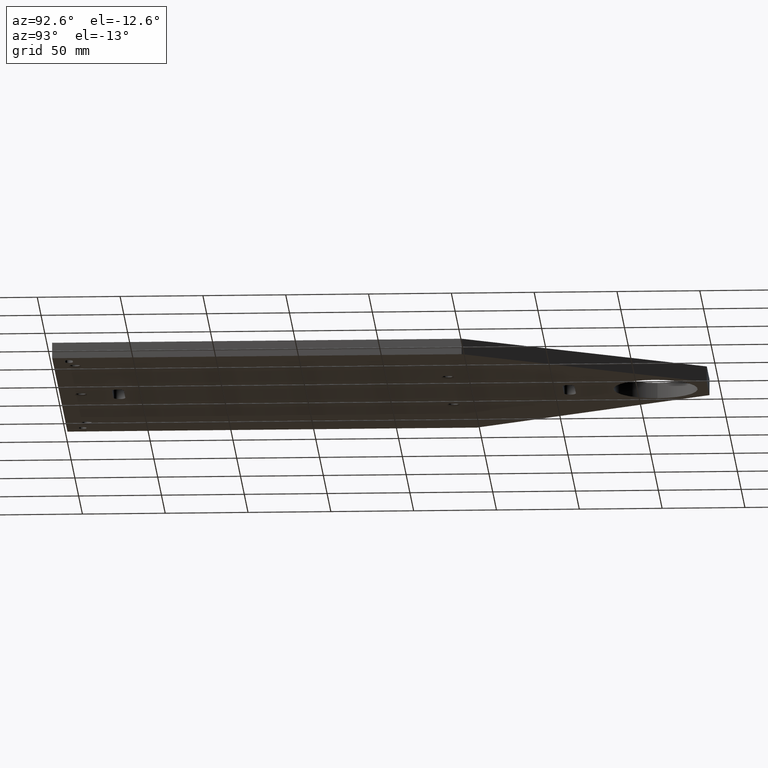
[diagram: clean part render]
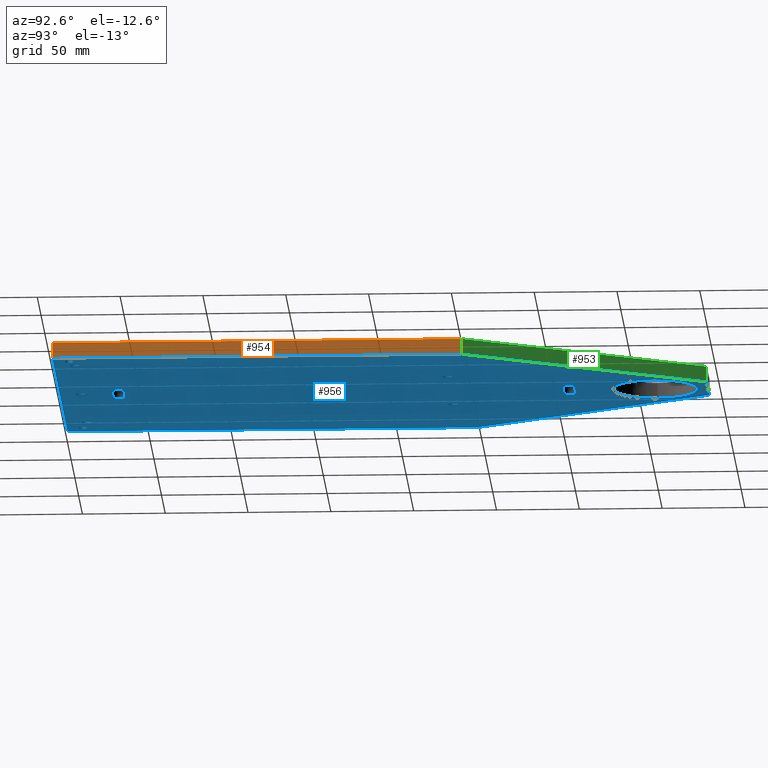
[diagram: same view with three faces highlighted in distinct colors, each labeled with its STEP entity id]
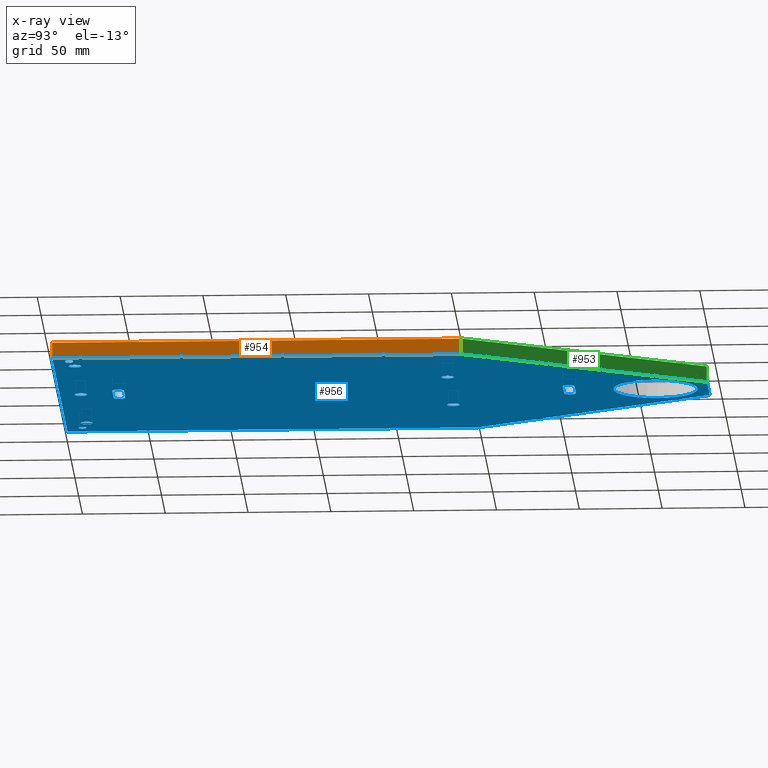
[diagram: x-ray of the same camera — body ghosted, the three highlighted faces saturated]
A machine part, auxiliary view with three faces highlighted in distinct colors.
The next image is the same camera in x-ray (body ghosted, the three faces saturated) — at least one of them is partly hidden behind the body in this view.
Their STEP definitions:

[orange] entity #954 — the highlighted planar face has unit normal (1, 0, -0).
#72 = LINE ( 'NONE', #1204, #75 ) ;
#74 = LINE ( 'NONE', #1224, #81 ) ;
#75 = VECTOR ( 'NONE', #1205, 39.37007874015748100 ) ;
#76 = LINE ( 'NONE', #1208, #79 ) ;
#79 = VECTOR ( 'NONE', #1210, 39.37007874015748100 ) ;
#81 = VECTOR ( 'NONE', #1209, 39.37007874015748100 ) ;
#163 = DIRECTION ( 'NONE',  ( -2.245362950125366000E-016, 1.000000000000000000, -0.0000000000000000000 ) ) ;
#164 = CARTESIAN_POINT ( 'NONE',  ( 4.000000000000005300, 9.733296769724415000, 0.1875000000000000300 ) ) ;
#230 = CARTESIAN_POINT ( 'NONE',  ( 4.000000000000005300, 9.733296769724415000, 0.1875000000000000300 ) ) ;
#273 = CARTESIAN_POINT ( 'NONE',  ( 4.000000000000005300, 9.733296769724415000, -0.1875000000000000300 ) ) ;
#285 = CARTESIAN_POINT ( 'NONE',  ( 4.000000000000008000, 1.092739197465705300E-015, 0.1875000000000000300 ) ) ;
#299 = CARTESIAN_POINT ( 'NONE',  ( 4.000000000000008000, 1.092739197465705300E-015, -0.1875000000000000300 ) ) ;
#418 = LINE ( 'NONE', #164, #421 ) ;
#421 = VECTOR ( 'NONE', #163, 39.37007874015748100 ) ;
#615 = VERTEX_POINT ( 'NONE', #285 ) ;
#616 = VERTEX_POINT ( 'NONE', #230 ) ;
#625 = VERTEX_POINT ( 'NONE', #273 ) ;
#626 = VERTEX_POINT ( 'NONE', #299 ) ;
#679 = FACE_OUTER_BOUND ( 'NONE', #1033, .T. ) ;
#882 = AXIS2_PLACEMENT_3D ( 'NONE', #1306, #1312, #1313 ) ;
#954 = ADVANCED_FACE ( 'NONE', ( #679 ), #1314, .T. ) ;
#1033 = EDGE_LOOP ( 'NONE', ( #1225, #1229, #1228, #1542 ) ) ;
#1132 = EDGE_CURVE ( 'NONE', #625, #616, #72, .T. ) ;
#1134 = EDGE_CURVE ( 'NONE', #626, #615, #76, .T. ) ;
#1135 = EDGE_CURVE ( 'NONE', #626, #625, #74, .T. ) ;
#1204 = CARTESIAN_POINT ( 'NONE',  ( 4.000000000000005300, 9.733296769724415000, -0.1875000000000000300 ) ) ;
#1205 = DIRECTION ( 'NONE',  ( 0.0000000000000000000, 0.0000000000000000000, 1.000000000000000000 ) ) ;
#1208 = CARTESIAN_POINT ( 'NONE',  ( 4.000000000000008000, 1.092739197465705300E-015, -0.1875000000000000300 ) ) ;
#1209 = DIRECTION ( 'NONE',  ( -2.245362950125366000E-016, 1.000000000000000000, -0.0000000000000000000 ) ) ;
#1210 = DIRECTION ( 'NONE',  ( 0.0000000000000000000, 0.0000000000000000000, 1.000000000000000000 ) ) ;
#1224 = CARTESIAN_POINT ( 'NONE',  ( 4.000000000000005300, 9.733296769724415000, -0.1875000000000000300 ) ) ;
#1225 = ORIENTED_EDGE ( 'NONE', *, *, #1287, .F. ) ;
#1228 = ORIENTED_EDGE ( 'NONE', *, *, #1135, .T. ) ;
#1229 = ORIENTED_EDGE ( 'NONE', *, *, #1134, .F. ) ;
#1287 = EDGE_CURVE ( 'NONE', #615, #616, #418, .T. ) ;
#1306 = CARTESIAN_POINT ( 'NONE',  ( 4.000000000000005300, 9.733296769724415000, -0.1875000000000000300 ) ) ;
#1312 = DIRECTION ( 'NONE',  ( 1.000000000000000000, 2.245362950125366500E-016, -0.0000000000000000000 ) ) ;
#1313 = DIRECTION ( 'NONE',  ( -2.245362950125366500E-016, 1.000000000000000000, 0.0000000000000000000 ) ) ;
#1314 = PLANE ( 'NONE',  #882 ) ;
#1542 = ORIENTED_EDGE ( 'NONE', *, *, #1132, .T. ) ;

[blue] entity #956 — the highlighted planar face has unit normal (0, 0, -1).
#59 = LINE ( 'NONE', #1218, #77 ) ;
#68 = VECTOR ( 'NONE', #1214, 39.37007874015748900 ) ;
#69 = LINE ( 'NONE', #1220, #68 ) ;
#70 = LINE ( 'NONE', #1217, #73 ) ;
#73 = VECTOR ( 'NONE', #1212, 39.37007874015748100 ) ;
#74 = LINE ( 'NONE', #1224, #81 ) ;
#77 = VECTOR ( 'NONE', #1206, 39.37007874015748100 ) ;
#78 = CIRCLE ( 'NONE', #1484, 0.1499999999999997700 ) ;
#80 = LINE ( 'NONE', #1203, #83 ) ;
#81 = VECTOR ( 'NONE', #1209, 39.37007874015748100 ) ;
#82 = CIRCLE ( 'NONE', #1481, 0.1499999999999999100 ) ;
#83 = VECTOR ( 'NONE', #1223, 39.37007874015748100 ) ;
#84 = CIRCLE ( 'NONE', #1485, 0.1499999999999997700 ) ;
#85 = CIRCLE ( 'NONE', #1486, 0.09399999999999959800 ) ;
#86 = LINE ( 'NONE', #211, #89 ) ;
#88 = CIRCLE ( 'NONE', #1487, 0.09399999999999959800 ) ;
#89 = VECTOR ( 'NONE', #220, 39.37007874015748100 ) ;
#90 = LINE ( 'NONE', #1207, #92 ) ;
#91 = CIRCLE ( 'NONE', #1488, 0.09400000000000013900 ) ;
#92 = VECTOR ( 'NONE', #216, 39.37007874015748100 ) ;
#102 = CIRCLE ( 'NONE', #1492, 0.09399999999999959800 ) ;
#104 = CIRCLE ( 'NONE', #1491, 0.1499999999999997700 ) ;
#110 = CIRCLE ( 'NONE', #1494, 0.09400000000000013900 ) ;
#204 = DIRECTION ( 'NONE',  ( 1.000000000000000000, 0.0000000000000000000, 0.0000000000000000000 ) ) ;
#205 = DIRECTION ( 'NONE',  ( -0.0000000000000000000, -0.0000000000000000000, 1.000000000000000000 ) ) ;
#207 = DIRECTION ( 'NONE',  ( 1.000000000000000000, 0.0000000000000000000, 0.0000000000000000000 ) ) ;
#208 = DIRECTION ( 'NONE',  ( 0.0000000000000000000, 0.0000000000000000000, 1.000000000000000000 ) ) ;
#211 = CARTESIAN_POINT ( 'NONE',  ( 3.560000000000000100, 0.2860000000000002000, -0.1875000000000000300 ) ) ;
#212 = DIRECTION ( 'NONE',  ( -0.0000000000000000000, -0.0000000000000000000, 1.000000000000000000 ) ) ;
#213 = DIRECTION ( 'NONE',  ( 1.000000000000000000, 0.0000000000000000000, 0.0000000000000000000 ) ) ;
#214 = DIRECTION ( 'NONE',  ( 1.000000000000000000, 0.0000000000000000000, 0.0000000000000000000 ) ) ;
#216 = DIRECTION ( 'NONE',  ( -1.000000000000000000, -0.0000000000000000000, -0.0000000000000000000 ) ) ;
#217 = CARTESIAN_POINT ( 'NONE',  ( 3.680000000000002400, 0.3799999999999997800, -0.1875000000000000300 ) ) ;
#218 = CARTESIAN_POINT ( 'NONE',  ( -3.620000000000005400, 0.3799999999999997800, -0.1875000000000000300 ) ) ;
#220 = DIRECTION ( 'NONE',  ( 1.000000000000000000, 2.845674993400227100E-016, 0.0000000000000000000 ) ) ;
#221 = CARTESIAN_POINT ( 'NONE',  ( 3.560000000000000100, 0.3799999999999997800, -0.1875000000000000300 ) ) ;
#222 = DIRECTION ( 'NONE',  ( 0.0000000000000000000, 0.0000000000000000000, 1.000000000000000000 ) ) ;
#225 = CARTESIAN_POINT ( 'NONE',  ( -0.3750000000000020000, 11.96950000000006600, -0.1875000000000000300 ) ) ;
#228 = CARTESIAN_POINT ( 'NONE',  ( 0.5154999999999969600, 12.11000000000006700, -0.1875000000000000300 ) ) ;
#231 = CARTESIAN_POINT ( 'NONE',  ( -3.714000000000005700, 0.3799999999999997800, -0.1875000000000000300 ) ) ;
#238 = CARTESIAN_POINT ( 'NONE',  ( -1.349999999999999400, 9.286500000000010900, -0.1874999999999999400 ) ) ;
#241 = CARTESIAN_POINT ( 'NONE',  ( 0.3750000000000036600, 1.259500000000067300, -0.1875000000000000300 ) ) ;
#243 = CARTESIAN_POINT ( 'NONE',  ( 3.774000000000001800, 0.3799999999999997800, -0.1875000000000000300 ) ) ;
#244 = CARTESIAN_POINT ( 'NONE',  ( 1.650000000000000800, 9.286500000000010900, -0.1874999999999999400 ) ) ;
#255 = CARTESIAN_POINT ( 'NONE',  ( 0.5155000000000037300, 1.400000000000067000, -0.1875000000000000300 ) ) ;
#258 = CARTESIAN_POINT ( 'NONE',  ( 3.560000000000000100, 0.4739999999999993700, -0.1875000000000000300 ) ) ;
#260 = CARTESIAN_POINT ( 'NONE',  ( -3.526000000000005600, 0.3799999999999997800, -0.1875000000000000300 ) ) ;
#263 = CARTESIAN_POINT ( 'NONE',  ( -2.950000000000000600, 0.4999999999999930100, -0.1874999999999999400 ) ) ;
#265 = CARTESIAN_POINT ( 'NONE',  ( -0.3749999999999963900, 1.259500000000066900, -0.1875000000000000300 ) ) ;
#267 = CARTESIAN_POINT ( 'NONE',  ( 0.3749999999999980600, 11.96950000000006800, -0.1875000000000000300 ) ) ;
#273 = CARTESIAN_POINT ( 'NONE',  ( 4.000000000000005300, 9.733296769724415000, -0.1875000000000000300 ) ) ;
#277 = CARTESIAN_POINT ( 'NONE',  ( 0.7216878364870408200, 15.41150000000001300, -0.1875000000000000300 ) ) ;
#280 = CARTESIAN_POINT ( 'NONE',  ( -4.000000000000003600, 9.733296769724413300, -0.1875000000000000300 ) ) ;
#282 = CARTESIAN_POINT ( 'NONE',  ( -0.7216878364870401600, 15.41150000000001300, -0.1875000000000000300 ) ) ;
#283 = CARTESIAN_POINT ( 'NONE',  ( 3.560000000000000100, 0.2860000000000002000, -0.1875000000000000300 ) ) ;
#284 = CARTESIAN_POINT ( 'NONE',  ( 0.3749999999999980600, 12.25050000000006600, -0.1875000000000000300 ) ) ;
#286 = CARTESIAN_POINT ( 'NONE',  ( 0.3750000000000036600, 1.540500000000067000, -0.1875000000000000300 ) ) ;
#290 = CARTESIAN_POINT ( 'NONE',  ( -0.9999999999999990000, 14.16150000000001100, -0.1875000000000000300 ) ) ;
#291 = CARTESIAN_POINT ( 'NONE',  ( -4.000000000000003600, 0.0000000000000000000, -0.1875000000000000300 ) ) ;
#292 = CARTESIAN_POINT ( 'NONE',  ( 1.350000000000001200, 9.286500000000010900, -0.1874999999999999400 ) ) ;
#299 = CARTESIAN_POINT ( 'NONE',  ( 4.000000000000008000, 1.092739197465705300E-015, -0.1875000000000000300 ) ) ;
#300 = CARTESIAN_POINT ( 'NONE',  ( 0.9999999999999990000, 14.16150000000001100, -0.1875000000000000300 ) ) ;
#301 = CARTESIAN_POINT ( 'NONE',  ( -1.649999999999999700, 9.286500000000010900, -0.1874999999999999400 ) ) ;
#305 = CARTESIAN_POINT ( 'NONE',  ( 3.680000000000002400, 0.4739999999999993700, -0.1875000000000000300 ) ) ;
#306 = CARTESIAN_POINT ( 'NONE',  ( -0.3750000000000020000, 12.25050000000006600, -0.1875000000000000300 ) ) ;
#307 = CARTESIAN_POINT ( 'NONE',  ( 3.680000000000002400, 0.2860000000000002000, -0.1875000000000000300 ) ) ;
#322 = CARTESIAN_POINT ( 'NONE',  ( -0.3749999999999963900, 1.540500000000067000, -0.1875000000000000300 ) ) ;
#323 = CARTESIAN_POINT ( 'NONE',  ( 0.3750000000000037700, 1.400000000000067000, -0.1875000000000000300 ) ) ;
#324 = DIRECTION ( 'NONE',  ( 0.0000000000000000000, 0.0000000000000000000, 1.000000000000000000 ) ) ;
#325 = DIRECTION ( 'NONE',  ( -1.000000000000000000, 0.0000000000000000000, 0.0000000000000000000 ) ) ;
#335 = CARTESIAN_POINT ( 'NONE',  ( 0.0000000000000000000, 14.16150000000001100, -0.1875000000000000300 ) ) ;
#336 = DIRECTION ( 'NONE',  ( 0.0000000000000000000, 0.0000000000000000000, 1.000000000000000000 ) ) ;
#337 = DIRECTION ( 'NONE',  ( 1.000000000000000000, 0.0000000000000000000, 0.0000000000000000000 ) ) ;
#348 = CARTESIAN_POINT ( 'NONE',  ( -2.731847993664263200E-016, 0.4999999999999930100, -0.1874999999999999400 ) ) ;
#349 = DIRECTION ( 'NONE',  ( -0.0000000000000000000, -0.0000000000000000000, 1.000000000000000000 ) ) ;
#350 = DIRECTION ( 'NONE',  ( 1.000000000000000000, 0.0000000000000000000, 0.0000000000000000000 ) ) ;
#373 = CARTESIAN_POINT ( 'NONE',  ( 3.099999999999999600, 0.4999999999999930100, -0.1874999999999999400 ) ) ;
#374 = DIRECTION ( 'NONE',  ( -0.0000000000000000000, -0.0000000000000000000, 1.000000000000000000 ) ) ;
#375 = DIRECTION ( 'NONE',  ( 1.000000000000000000, 0.0000000000000000000, 0.0000000000000000000 ) ) ;
#437 = LINE ( 'NONE', #1650, #440 ) ;
#440 = VECTOR ( 'NONE', #1652, 39.37007874015748100 ) ;
#443 = CIRCLE ( 'NONE', #1526, 0.1499999999999997700 ) ;
#444 = CIRCLE ( 'NONE', #1527, 0.1404999999999992400 ) ;
#445 = CIRCLE ( 'NONE', #1525, 0.1500000000000000500 ) ;
#446 = LINE ( 'NONE', #1668, #449 ) ;
#447 = LINE ( 'NONE', #1678, #455 ) ;
#448 = CIRCLE ( 'NONE', #1528, 0.1405000000000003200 ) ;
#449 = VECTOR ( 'NONE', #1651, 39.37007874015748100 ) ;
#450 = LINE ( 'NONE', #1653, #452 ) ;
#451 = CIRCLE ( 'NONE', #1529, 0.1404999999999999000 ) ;
#452 = VECTOR ( 'NONE', #1667, 39.37007874015748100 ) ;
#454 = CIRCLE ( 'NONE', #1530, 0.1405000000000000400 ) ;
#455 = VECTOR ( 'NONE', #1672, 39.37007874015748100 ) ;
#456 = LINE ( 'NONE', #1677, #458 ) ;
#457 = CIRCLE ( 'NONE', #1531, 0.9999999999999990000 ) ;
#458 = VECTOR ( 'NONE', #1676, 39.37007874015748100 ) ;
#481 = CIRCLE ( 'NONE', #1544, 0.1500000000000000500 ) ;
#497 = CIRCLE ( 'NONE', #1548, 0.1499999999999997700 ) ;
#500 = CIRCLE ( 'NONE', #1549, 0.1404999999999992400 ) ;
#506 = CIRCLE ( 'NONE', #1551, 0.1404999999999999000 ) ;
#512 = CIRCLE ( 'NONE', #1553, 0.9999999999999990000 ) ;
#522 = CIRCLE ( 'NONE', #1555, 0.1499999999999999100 ) ;
#545 = VERTEX_POINT ( 'NONE', #1626 ) ;
#551 = VERTEX_POINT ( 'NONE', #1627 ) ;
#553 = VERTEX_POINT ( 'NONE', #263 ) ;
#559 = VERTEX_POINT ( 'NONE', #301 ) ;
#560 = VERTEX_POINT ( 'NONE', #243 ) ;
#561 = VERTEX_POINT ( 'NONE', #238 ) ;
#562 = VERTEX_POINT ( 'NONE', #305 ) ;
#563 = VERTEX_POINT ( 'NONE', #231 ) ;
#564 = VERTEX_POINT ( 'NONE', #260 ) ;
#578 = VERTEX_POINT ( 'NONE', #292 ) ;
#580 = VERTEX_POINT ( 'NONE', #244 ) ;
#590 = VERTEX_POINT ( 'NONE', #228 ) ;
#593 = VERTEX_POINT ( 'NONE', #284 ) ;
#595 = VERTEX_POINT ( 'NONE', #255 ) ;
#596 = VERTEX_POINT ( 'NONE', #286 ) ;
#599 = VERTEX_POINT ( 'NONE', #290 ) ;
#600 = VERTEX_POINT ( 'NONE', #300 ) ;
#610 = VERTEX_POINT ( 'NONE', #267 ) ;
#613 = VERTEX_POINT ( 'NONE', #282 ) ;
#620 = VERTEX_POINT ( 'NONE', #283 ) ;
#621 = VERTEX_POINT ( 'NONE', #280 ) ;
#622 = VERTEX_POINT ( 'NONE', #277 ) ;
#623 = VERTEX_POINT ( 'NONE', #291 ) ;
#624 = VERTEX_POINT ( 'NONE', #241 ) ;
#625 = VERTEX_POINT ( 'NONE', #273 ) ;
#626 = VERTEX_POINT ( 'NONE', #299 ) ;
#627 = VERTEX_POINT ( 'NONE', #258 ) ;
#628 = VERTEX_POINT ( 'NONE', #307 ) ;
#629 = VERTEX_POINT ( 'NONE', #306 ) ;
#630 = VERTEX_POINT ( 'NONE', #322 ) ;
#631 = VERTEX_POINT ( 'NONE', #225 ) ;
#632 = VERTEX_POINT ( 'NONE', #265 ) ;
#674 = FACE_BOUND ( 'NONE', #1027, .T. ) ;
#675 = FACE_BOUND ( 'NONE', #1002, .T. ) ;
#681 = FACE_BOUND ( 'NONE', #1022, .T. ) ;
#682 = FACE_BOUND ( 'NONE', #1006, .T. ) ;
#683 = FACE_BOUND ( 'NONE', #1001, .T. ) ;
#684 = FACE_BOUND ( 'NONE', #1026, .T. ) ;
#685 = FACE_BOUND ( 'NONE', #1042, .T. ) ;
#686 = FACE_BOUND ( 'NONE', #1005, .T. ) ;
#687 = FACE_BOUND ( 'NONE', #1024, .T. ) ;
#688 = FACE_BOUND ( 'NONE', #1043, .T. ) ;
#689 = FACE_OUTER_BOUND ( 'NONE', #1050, .T. ) ;
#707 = ORIENTED_EDGE ( 'NONE', *, *, #1782, .T. ) ;
#730 = ORIENTED_EDGE ( 'NONE', *, *, #1758, .T. ) ;
#731 = ORIENTED_EDGE ( 'NONE', *, *, #1792, .T. ) ;
#732 = ORIENTED_EDGE ( 'NONE', *, *, #1759, .T. ) ;
#733 = ORIENTED_EDGE ( 'NONE', *, *, #1760, .T. ) ;
#734 = ORIENTED_EDGE ( 'NONE', *, *, #1794, .T. ) ;
#735 = ORIENTED_EDGE ( 'NONE', *, *, #1761, .T. ) ;
#736 = ORIENTED_EDGE ( 'NONE', *, *, #1762, .T. ) ;
#737 = ORIENTED_EDGE ( 'NONE', *, *, #1763, .T. ) ;
#738 = ORIENTED_EDGE ( 'NONE', *, *, #1764, .T. ) ;
#739 = ORIENTED_EDGE ( 'NONE', *, *, #1798, .T. ) ;
#740 = ORIENTED_EDGE ( 'NONE', *, *, #1765, .T. ) ;
#741 = ORIENTED_EDGE ( 'NONE', *, *, #1766, .T. ) ;
#742 = ORIENTED_EDGE ( 'NONE', *, *, #1767, .T. ) ;
#743 = ORIENTED_EDGE ( 'NONE', *, *, #1768, .T. ) ;
#744 = ORIENTED_EDGE ( 'NONE', *, *, #1802, .T. ) ;
#745 = ORIENTED_EDGE ( 'NONE', *, *, #1299, .F. ) ;
#746 = ORIENTED_EDGE ( 'NONE', *, *, #1129, .F. ) ;
#747 = ORIENTED_EDGE ( 'NONE', *, *, #1131, .F. ) ;
#748 = ORIENTED_EDGE ( 'NONE', *, *, #1133, .F. ) ;
#749 = ORIENTED_EDGE ( 'NONE', *, *, #1135, .F. ) ;
#750 = ORIENTED_EDGE ( 'NONE', *, *, #1136, .F. ) ;
#794 = CARTESIAN_POINT ( 'NONE',  ( 0.1499999999999996300, 0.4999999999999930100, -0.1874999999999999400 ) ) ;
#797 = CARTESIAN_POINT ( 'NONE',  ( 3.249999999999999600, 0.4999999999999930100, -0.1874999999999999400 ) ) ;
#810 = CARTESIAN_POINT ( 'NONE',  ( 2.949999999999999700, 0.4999999999999930100, -0.1874999999999999400 ) ) ;
#811 = CARTESIAN_POINT ( 'NONE',  ( -3.620000000000005400, 0.3799999999999997800, -0.1875000000000000300 ) ) ;
#814 = DIRECTION ( 'NONE',  ( 1.000000000000000000, 0.0000000000000000000, 0.0000000000000000000 ) ) ;
#816 = DIRECTION ( 'NONE',  ( -0.0000000000000000000, -0.0000000000000000000, 1.000000000000000000 ) ) ;
#835 = ORIENTED_EDGE ( 'NONE', *, *, #1140, .T. ) ;
#836 = ORIENTED_EDGE ( 'NONE', *, *, #1244, .T. ) ;
#837 = ORIENTED_EDGE ( 'NONE', *, *, #1139, .T. ) ;
#849 = ORIENTED_EDGE ( 'NONE', *, *, #1250, .T. ) ;
#850 = DIRECTION ( 'NONE',  ( 1.000000000000000000, 0.0000000000000000000, 0.0000000000000000000 ) ) ;
#852 = CARTESIAN_POINT ( 'NONE',  ( -3.100000000000000100, 0.4999999999999930100, -0.1874999999999999400 ) ) ;
#884 = AXIS2_PLACEMENT_3D ( 'NONE', #1311, #1369, #1376 ) ;
#956 = ADVANCED_FACE ( 'NONE', ( #681, #683, #674, #682, #675, #684, #685, #686, #687, #688, #689 ), #1310, .T. ) ;
#966 = ORIENTED_EDGE ( 'NONE', *, *, #1144, .T. ) ;
#967 = ORIENTED_EDGE ( 'NONE', *, *, #1143, .T. ) ;
#982 = ORIENTED_EDGE ( 'NONE', *, *, #1818, .T. ) ;
#983 = ORIENTED_EDGE ( 'NONE', *, *, #1138, .T. ) ;
#984 = ORIENTED_EDGE ( 'NONE', *, *, #1137, .T. ) ;
#985 = ORIENTED_EDGE ( 'NONE', *, *, #1808, .T. ) ;
#1001 = EDGE_LOOP ( 'NONE', ( #982, #983 ) ) ;
#1002 = EDGE_LOOP ( 'NONE', ( #966, #849 ) ) ;
#1005 = EDGE_LOOP ( 'NONE', ( #733, #734, #735, #736, #737 ) ) ;
#1006 = EDGE_LOOP ( 'NONE', ( #835, #1302, #1301, #1300, #967 ) ) ;
#1022 = EDGE_LOOP ( 'NONE', ( #985, #984 ) ) ;
#1024 = EDGE_LOOP ( 'NONE', ( #738, #739, #740, #741, #742 ) ) ;
#1026 = EDGE_LOOP ( 'NONE', ( #707, #730 ) ) ;
#1027 = EDGE_LOOP ( 'NONE', ( #836, #837 ) ) ;
#1042 = EDGE_LOOP ( 'NONE', ( #731, #732 ) ) ;
#1043 = EDGE_LOOP ( 'NONE', ( #743, #744 ) ) ;
#1050 = EDGE_LOOP ( 'NONE', ( #745, #746, #747, #748, #749, #750 ) ) ;
#1062 = VERTEX_POINT ( 'NONE', #797 ) ;
#1063 = VERTEX_POINT ( 'NONE', #794 ) ;
#1064 = VERTEX_POINT ( 'NONE', #810 ) ;
#1129 = EDGE_CURVE ( 'NONE', #613, #621, #69, .T. ) ;
#1131 = EDGE_CURVE ( 'NONE', #622, #613, #70, .T. ) ;
#1133 = EDGE_CURVE ( 'NONE', #625, #622, #59, .T. ) ;
#1135 = EDGE_CURVE ( 'NONE', #626, #625, #74, .T. ) ;
#1136 = EDGE_CURVE ( 'NONE', #623, #626, #80, .T. ) ;
#1137 = EDGE_CURVE ( 'NONE', #1063, #545, #82, .T. ) ;
#1138 = EDGE_CURVE ( 'NONE', #1062, #1064, #78, .T. ) ;
#1139 = EDGE_CURVE ( 'NONE', #553, #551, #84, .T. ) ;
#1140 = EDGE_CURVE ( 'NONE', #627, #620, #85, .T. ) ;
#1141 = EDGE_CURVE ( 'NONE', #620, #628, #86, .T. ) ;
#1142 = EDGE_CURVE ( 'NONE', #628, #560, #88, .T. ) ;
#1143 = EDGE_CURVE ( 'NONE', #562, #627, #90, .T. ) ;
#1144 = EDGE_CURVE ( 'NONE', #564, #563, #91, .T. ) ;
#1202 = DIRECTION ( 'NONE',  ( -0.0000000000000000000, -0.0000000000000000000, 1.000000000000000000 ) ) ;
#1203 = CARTESIAN_POINT ( 'NONE',  ( -4.000000000000003600, 0.0000000000000000000, -0.1875000000000000300 ) ) ;
#1206 = DIRECTION ( 'NONE',  ( -0.4999999999999938400, 0.8660254037844422600, -0.0000000000000000000 ) ) ;
#1207 = CARTESIAN_POINT ( 'NONE',  ( 3.560000000000000100, 0.4739999999999993700, -0.1875000000000000300 ) ) ;
#1209 = DIRECTION ( 'NONE',  ( -2.245362950125366000E-016, 1.000000000000000000, -0.0000000000000000000 ) ) ;
#1212 = DIRECTION ( 'NONE',  ( -1.000000000000000000, -0.0000000000000000000, -0.0000000000000000000 ) ) ;
#1213 = CARTESIAN_POINT ( 'NONE',  ( -2.731847993664263200E-016, 0.4999999999999930100, -0.1874999999999999400 ) ) ;
#1214 = DIRECTION ( 'NONE',  ( -0.4999999999999935100, -0.8660254037844422600, 0.0000000000000000000 ) ) ;
#1215 = DIRECTION ( 'NONE',  ( 1.000000000000000000, 0.0000000000000000000, 0.0000000000000000000 ) ) ;
#1217 = CARTESIAN_POINT ( 'NONE',  ( -0.7216878364870401600, 15.41150000000001300, -0.1875000000000000300 ) ) ;
#1218 = CARTESIAN_POINT ( 'NONE',  ( 0.7216878364870408200, 15.41150000000001300, -0.1875000000000000300 ) ) ;
#1220 = CARTESIAN_POINT ( 'NONE',  ( -0.7216878364870401600, 15.41150000000001300, -0.1875000000000000300 ) ) ;
#1223 = DIRECTION ( 'NONE',  ( 1.000000000000000000, 1.365923996832129900E-016, 0.0000000000000000000 ) ) ;
#1224 = CARTESIAN_POINT ( 'NONE',  ( 4.000000000000005300, 9.733296769724415000, -0.1875000000000000300 ) ) ;
#1244 = EDGE_CURVE ( 'NONE', #551, #553, #104, .T. ) ;
#1246 = EDGE_CURVE ( 'NONE', #560, #562, #102, .T. ) ;
#1250 = EDGE_CURVE ( 'NONE', #563, #564, #110, .T. ) ;
#1299 = EDGE_CURVE ( 'NONE', #621, #623, #437, .T. ) ;
#1300 = ORIENTED_EDGE ( 'NONE', *, *, #1246, .T. ) ;
#1301 = ORIENTED_EDGE ( 'NONE', *, *, #1142, .T. ) ;
#1302 = ORIENTED_EDGE ( 'NONE', *, *, #1141, .T. ) ;
#1310 = PLANE ( 'NONE',  #884 ) ;
#1311 = CARTESIAN_POINT ( 'NONE',  ( 0.0000000000000000000, 0.0000000000000000000, -0.1875000000000000300 ) ) ;
#1320 = DIRECTION ( 'NONE',  ( -0.0000000000000000000, -0.0000000000000000000, 1.000000000000000000 ) ) ;
#1321 = CARTESIAN_POINT ( 'NONE',  ( 3.099999999999999600, 0.4999999999999930100, -0.1874999999999999400 ) ) ;
#1369 = DIRECTION ( 'NONE',  ( 0.0000000000000000000, 0.0000000000000000000, -1.000000000000000000 ) ) ;
#1376 = DIRECTION ( 'NONE',  ( -1.000000000000000000, 0.0000000000000000000, -0.0000000000000000000 ) ) ;
#1433 = DIRECTION ( 'NONE',  ( -0.0000000000000000000, -0.0000000000000000000, 1.000000000000000000 ) ) ;
#1434 = DIRECTION ( 'NONE',  ( 1.000000000000000000, 0.0000000000000000000, 0.0000000000000000000 ) ) ;
#1437 = CARTESIAN_POINT ( 'NONE',  ( -3.100000000000000100, 0.4999999999999930100, -0.1874999999999999400 ) ) ;
#1439 = DIRECTION ( 'NONE',  ( 0.0000000000000000000, 0.0000000000000000000, 1.000000000000000000 ) ) ;
#1440 = DIRECTION ( 'NONE',  ( 1.000000000000000000, 0.0000000000000000000, 0.0000000000000000000 ) ) ;
#1443 = CARTESIAN_POINT ( 'NONE',  ( 3.680000000000002400, 0.3799999999999997800, -0.1875000000000000300 ) ) ;
#1481 = AXIS2_PLACEMENT_3D ( 'NONE', #1213, #1202, #1215 ) ;
#1484 = AXIS2_PLACEMENT_3D ( 'NONE', #1321, #1320, #850 ) ;
#1485 = AXIS2_PLACEMENT_3D ( 'NONE', #852, #212, #214 ) ;
#1486 = AXIS2_PLACEMENT_3D ( 'NONE', #221, #222, #213 ) ;
#1487 = AXIS2_PLACEMENT_3D ( 'NONE', #217, #208, #204 ) ;
#1488 = AXIS2_PLACEMENT_3D ( 'NONE', #218, #205, #207 ) ;
#1491 = AXIS2_PLACEMENT_3D ( 'NONE', #1437, #1433, #1434 ) ;
#1492 = AXIS2_PLACEMENT_3D ( 'NONE', #1443, #1439, #1440 ) ;
#1494 = AXIS2_PLACEMENT_3D ( 'NONE', #811, #816, #814 ) ;
#1525 = AXIS2_PLACEMENT_3D ( 'NONE', #1661, #1662, #1663 ) ;
#1526 = AXIS2_PLACEMENT_3D ( 'NONE', #1664, #1665, #1666 ) ;
#1527 = AXIS2_PLACEMENT_3D ( 'NONE', #1669, #1670, #1671 ) ;
#1528 = AXIS2_PLACEMENT_3D ( 'NONE', #1673, #1674, #1675 ) ;
#1529 = AXIS2_PLACEMENT_3D ( 'NONE', #1679, #1680, #1681 ) ;
#1530 = AXIS2_PLACEMENT_3D ( 'NONE', #1683, #1684, #1685 ) ;
#1531 = AXIS2_PLACEMENT_3D ( 'NONE', #1688, #1689, #1690 ) ;
#1544 = AXIS2_PLACEMENT_3D ( 'NONE', #1720, #1721, #1722 ) ;
#1548 = AXIS2_PLACEMENT_3D ( 'NONE', #1745, #1746, #1747 ) ;
#1549 = AXIS2_PLACEMENT_3D ( 'NONE', #1749, #1750, #1751 ) ;
#1551 = AXIS2_PLACEMENT_3D ( 'NONE', #323, #324, #325 ) ;
#1553 = AXIS2_PLACEMENT_3D ( 'NONE', #335, #336, #337 ) ;
#1555 = AXIS2_PLACEMENT_3D ( 'NONE', #348, #349, #350 ) ;
#1559 = AXIS2_PLACEMENT_3D ( 'NONE', #373, #374, #375 ) ;
#1626 = CARTESIAN_POINT ( 'NONE',  ( -0.1500000000000001900, 0.4999999999999930100, -0.1874999999999999400 ) ) ;
#1627 = CARTESIAN_POINT ( 'NONE',  ( -3.250000000000000000, 0.4999999999999930100, -0.1874999999999999400 ) ) ;
#1639 = CIRCLE ( 'NONE', #1559, 0.1499999999999997700 ) ;
#1650 = CARTESIAN_POINT ( 'NONE',  ( -4.000000000000003600, 0.0000000000000000000, -0.1875000000000000300 ) ) ;
#1651 = DIRECTION ( 'NONE',  ( -1.000000000000000000, 0.0000000000000000000, 0.0000000000000000000 ) ) ;
#1652 = DIRECTION ( 'NONE',  ( 5.613407375313416200E-017, -1.000000000000000000, -0.0000000000000000000 ) ) ;
#1653 = CARTESIAN_POINT ( 'NONE',  ( 0.3749999999999980600, 11.96950000000006800, -0.1875000000000000300 ) ) ;
#1661 = CARTESIAN_POINT ( 'NONE',  ( -1.499999999999999600, 9.286500000000010900, -0.1874999999999999400 ) ) ;
#1662 = DIRECTION ( 'NONE',  ( -0.0000000000000000000, -0.0000000000000000000, 1.000000000000000000 ) ) ;
#1663 = DIRECTION ( 'NONE',  ( 1.000000000000000000, 0.0000000000000000000, 0.0000000000000000000 ) ) ;
#1664 = CARTESIAN_POINT ( 'NONE',  ( 1.500000000000000900, 9.286500000000010900, -0.1874999999999999400 ) ) ;
#1665 = DIRECTION ( 'NONE',  ( -0.0000000000000000000, -0.0000000000000000000, 1.000000000000000000 ) ) ;
#1666 = DIRECTION ( 'NONE',  ( 1.000000000000000000, 0.0000000000000000000, 0.0000000000000000000 ) ) ;
#1667 = DIRECTION ( 'NONE',  ( 1.000000000000000000, 2.913971193241881200E-015, -0.0000000000000000000 ) ) ;
#1668 = CARTESIAN_POINT ( 'NONE',  ( 0.3749999999999980600, 12.25050000000006600, -0.1875000000000000300 ) ) ;
#1669 = CARTESIAN_POINT ( 'NONE',  ( 0.3749999999999977200, 12.11000000000006700, -0.1875000000000000300 ) ) ;
#1670 = DIRECTION ( 'NONE',  ( 0.0000000000000000000, 0.0000000000000000000, 1.000000000000000000 ) ) ;
#1671 = DIRECTION ( 'NONE',  ( 1.000000000000000000, 0.0000000000000000000, 0.0000000000000000000 ) ) ;
#1672 = DIRECTION ( 'NONE',  ( -1.000000000000000000, 0.0000000000000000000, 0.0000000000000000000 ) ) ;
#1673 = CARTESIAN_POINT ( 'NONE',  ( -0.3750000000000023300, 12.11000000000006700, -0.1875000000000000300 ) ) ;
#1674 = DIRECTION ( 'NONE',  ( 0.0000000000000000000, 0.0000000000000000000, 1.000000000000000000 ) ) ;
#1675 = DIRECTION ( 'NONE',  ( 1.000000000000000000, 0.0000000000000000000, 0.0000000000000000000 ) ) ;
#1676 = DIRECTION ( 'NONE',  ( 1.000000000000000000, 3.642463991552351500E-016, -0.0000000000000000000 ) ) ;
#1677 = CARTESIAN_POINT ( 'NONE',  ( 0.3750000000000036600, 1.259500000000067300, -0.1875000000000000300 ) ) ;
#1678 = CARTESIAN_POINT ( 'NONE',  ( 0.3750000000000036600, 1.540500000000067000, -0.1875000000000000300 ) ) ;
#1679 = CARTESIAN_POINT ( 'NONE',  ( 0.3750000000000037700, 1.400000000000067000, -0.1875000000000000300 ) ) ;
#1680 = DIRECTION ( 'NONE',  ( 0.0000000000000000000, 0.0000000000000000000, 1.000000000000000000 ) ) ;
#1681 = DIRECTION ( 'NONE',  ( -1.000000000000000000, 0.0000000000000000000, 0.0000000000000000000 ) ) ;
#1683 = CARTESIAN_POINT ( 'NONE',  ( -0.3749999999999962800, 1.400000000000067000, -0.1875000000000000300 ) ) ;
#1684 = DIRECTION ( 'NONE',  ( 0.0000000000000000000, 0.0000000000000000000, 1.000000000000000000 ) ) ;
#1685 = DIRECTION ( 'NONE',  ( -1.000000000000000000, 0.0000000000000000000, 0.0000000000000000000 ) ) ;
#1688 = CARTESIAN_POINT ( 'NONE',  ( 0.0000000000000000000, 14.16150000000001100, -0.1875000000000000300 ) ) ;
#1689 = DIRECTION ( 'NONE',  ( 0.0000000000000000000, 0.0000000000000000000, 1.000000000000000000 ) ) ;
#1690 = DIRECTION ( 'NONE',  ( 1.000000000000000000, 0.0000000000000000000, 0.0000000000000000000 ) ) ;
#1720 = CARTESIAN_POINT ( 'NONE',  ( -1.499999999999999600, 9.286500000000010900, -0.1874999999999999400 ) ) ;
#1721 = DIRECTION ( 'NONE',  ( -0.0000000000000000000, -0.0000000000000000000, 1.000000000000000000 ) ) ;
#1722 = DIRECTION ( 'NONE',  ( 1.000000000000000000, 0.0000000000000000000, 0.0000000000000000000 ) ) ;
#1745 = CARTESIAN_POINT ( 'NONE',  ( 1.500000000000000900, 9.286500000000010900, -0.1874999999999999400 ) ) ;
#1746 = DIRECTION ( 'NONE',  ( -0.0000000000000000000, -0.0000000000000000000, 1.000000000000000000 ) ) ;
#1747 = DIRECTION ( 'NONE',  ( 1.000000000000000000, 0.0000000000000000000, 0.0000000000000000000 ) ) ;
#1749 = CARTESIAN_POINT ( 'NONE',  ( 0.3749999999999977200, 12.11000000000006700, -0.1875000000000000300 ) ) ;
#1750 = DIRECTION ( 'NONE',  ( 0.0000000000000000000, 0.0000000000000000000, 1.000000000000000000 ) ) ;
#1751 = DIRECTION ( 'NONE',  ( 1.000000000000000000, 0.0000000000000000000, 0.0000000000000000000 ) ) ;
#1758 = EDGE_CURVE ( 'NONE', #561, #559, #445, .T. ) ;
#1759 = EDGE_CURVE ( 'NONE', #580, #578, #443, .T. ) ;
#1760 = EDGE_CURVE ( 'NONE', #610, #590, #444, .T. ) ;
#1761 = EDGE_CURVE ( 'NONE', #593, #629, #446, .T. ) ;
#1762 = EDGE_CURVE ( 'NONE', #629, #631, #448, .T. ) ;
#1763 = EDGE_CURVE ( 'NONE', #631, #610, #450, .T. ) ;
#1764 = EDGE_CURVE ( 'NONE', #624, #595, #451, .T. ) ;
#1765 = EDGE_CURVE ( 'NONE', #596, #630, #447, .T. ) ;
#1766 = EDGE_CURVE ( 'NONE', #630, #632, #454, .T. ) ;
#1767 = EDGE_CURVE ( 'NONE', #632, #624, #456, .T. ) ;
#1768 = EDGE_CURVE ( 'NONE', #600, #599, #457, .T. ) ;
#1782 = EDGE_CURVE ( 'NONE', #559, #561, #481, .T. ) ;
#1792 = EDGE_CURVE ( 'NONE', #578, #580, #497, .T. ) ;
#1794 = EDGE_CURVE ( 'NONE', #590, #593, #500, .T. ) ;
#1798 = EDGE_CURVE ( 'NONE', #595, #596, #506, .T. ) ;
#1802 = EDGE_CURVE ( 'NONE', #599, #600, #512, .T. ) ;
#1808 = EDGE_CURVE ( 'NONE', #545, #1063, #522, .T. ) ;
#1818 = EDGE_CURVE ( 'NONE', #1064, #1062, #1639, .T. ) ;

[green] entity #953 — the highlighted planar face has unit normal (0.866, 0.5, -0).
#57 = LINE ( 'NONE', #1221, #62 ) ;
#59 = LINE ( 'NONE', #1218, #77 ) ;
#62 = VECTOR ( 'NONE', #1222, 39.37007874015748100 ) ;
#72 = LINE ( 'NONE', #1204, #75 ) ;
#75 = VECTOR ( 'NONE', #1205, 39.37007874015748100 ) ;
#77 = VECTOR ( 'NONE', #1206, 39.37007874015748100 ) ;
#152 = DIRECTION ( 'NONE',  ( -0.4999999999999938400, 0.8660254037844422600, -0.0000000000000000000 ) ) ;
#154 = CARTESIAN_POINT ( 'NONE',  ( 0.7216878364870408200, 15.41150000000001300, 0.1875000000000000300 ) ) ;
#230 = CARTESIAN_POINT ( 'NONE',  ( 4.000000000000005300, 9.733296769724415000, 0.1875000000000000300 ) ) ;
#273 = CARTESIAN_POINT ( 'NONE',  ( 4.000000000000005300, 9.733296769724415000, -0.1875000000000000300 ) ) ;
#277 = CARTESIAN_POINT ( 'NONE',  ( 0.7216878364870408200, 15.41150000000001300, -0.1875000000000000300 ) ) ;
#281 = CARTESIAN_POINT ( 'NONE',  ( 0.7216878364870408200, 15.41150000000001300, 0.1875000000000000300 ) ) ;
#420 = LINE ( 'NONE', #154, #423 ) ;
#423 = VECTOR ( 'NONE', #152, 39.37007874015748100 ) ;
#616 = VERTEX_POINT ( 'NONE', #230 ) ;
#617 = VERTEX_POINT ( 'NONE', #281 ) ;
#622 = VERTEX_POINT ( 'NONE', #277 ) ;
#625 = VERTEX_POINT ( 'NONE', #273 ) ;
#678 = FACE_OUTER_BOUND ( 'NONE', #763, .T. ) ;
#763 = EDGE_LOOP ( 'NONE', ( #1233, #1226, #1227, #1230 ) ) ;
#881 = AXIS2_PLACEMENT_3D ( 'NONE', #1322, #1325, #1326 ) ;
#953 = ADVANCED_FACE ( 'NONE', ( #678 ), #1323, .T. ) ;
#1130 = EDGE_CURVE ( 'NONE', #622, #617, #57, .T. ) ;
#1132 = EDGE_CURVE ( 'NONE', #625, #616, #72, .T. ) ;
#1133 = EDGE_CURVE ( 'NONE', #625, #622, #59, .T. ) ;
#1204 = CARTESIAN_POINT ( 'NONE',  ( 4.000000000000005300, 9.733296769724415000, -0.1875000000000000300 ) ) ;
#1205 = DIRECTION ( 'NONE',  ( 0.0000000000000000000, 0.0000000000000000000, 1.000000000000000000 ) ) ;
#1206 = DIRECTION ( 'NONE',  ( -0.4999999999999938400, 0.8660254037844422600, -0.0000000000000000000 ) ) ;
#1218 = CARTESIAN_POINT ( 'NONE',  ( 0.7216878364870408200, 15.41150000000001300, -0.1875000000000000300 ) ) ;
#1221 = CARTESIAN_POINT ( 'NONE',  ( 0.7216878364870408200, 15.41150000000001300, -0.1875000000000000300 ) ) ;
#1222 = DIRECTION ( 'NONE',  ( 0.0000000000000000000, 0.0000000000000000000, 1.000000000000000000 ) ) ;
#1226 = ORIENTED_EDGE ( 'NONE', *, *, #1132, .F. ) ;
#1227 = ORIENTED_EDGE ( 'NONE', *, *, #1133, .T. ) ;
#1230 = ORIENTED_EDGE ( 'NONE', *, *, #1130, .T. ) ;
#1233 = ORIENTED_EDGE ( 'NONE', *, *, #1288, .F. ) ;
#1288 = EDGE_CURVE ( 'NONE', #616, #617, #420, .T. ) ;
#1322 = CARTESIAN_POINT ( 'NONE',  ( 0.7216878364870408200, 15.41150000000001300, -0.1875000000000000300 ) ) ;
#1323 = PLANE ( 'NONE',  #881 ) ;
#1325 = DIRECTION ( 'NONE',  ( 0.8660254037844422600, 0.4999999999999937800, -0.0000000000000000000 ) ) ;
#1326 = DIRECTION ( 'NONE',  ( -0.4999999999999937800, 0.8660254037844422600, 0.0000000000000000000 ) ) ;